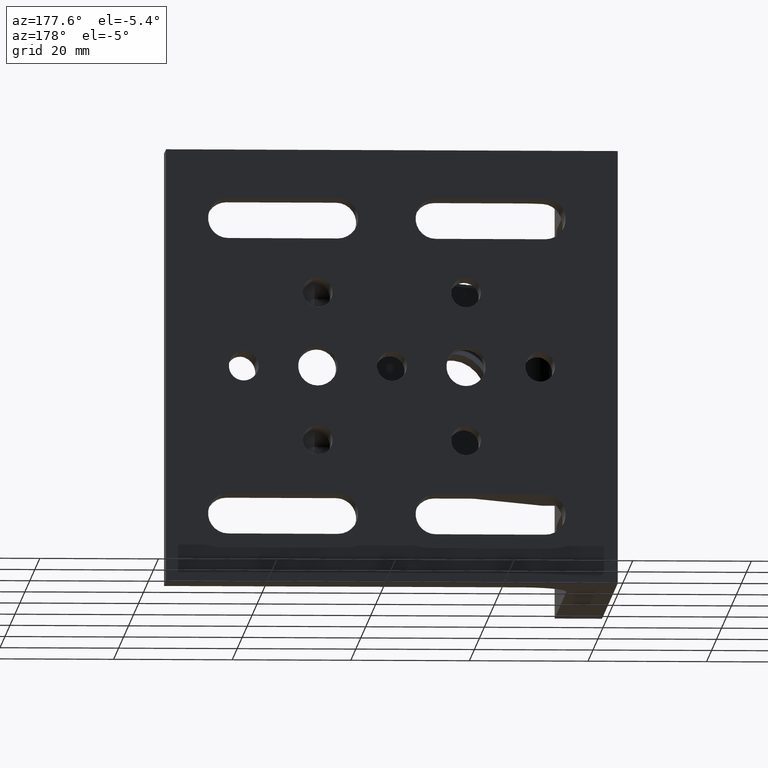
[diagram: clean part render]
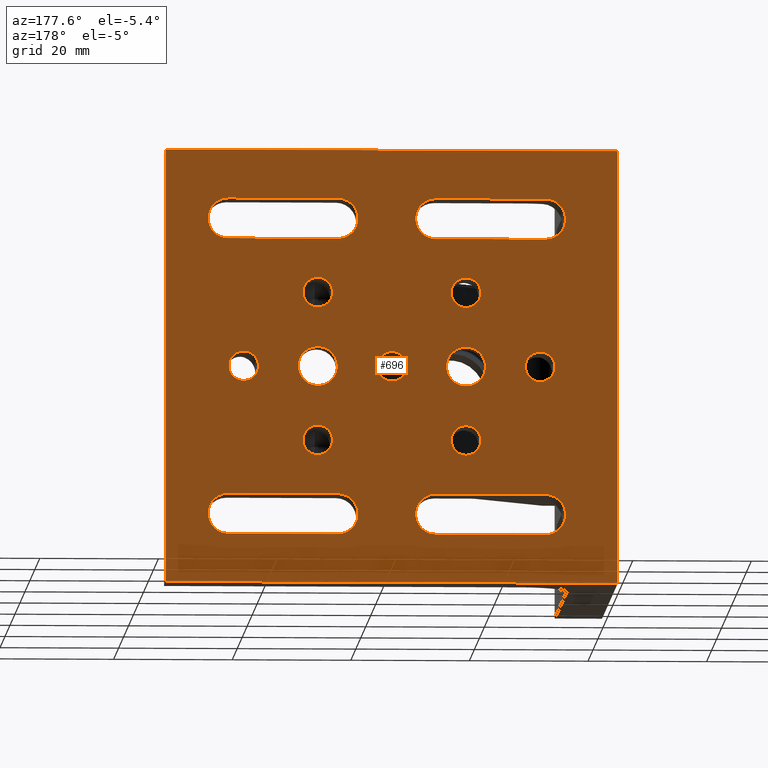
[diagram: same view with one face highlighted and labeled with its STEP entity id]
A machine part, auxiliary view. The second image highlights one B-rep face of the part: STEP entity #696.
In plain terms, the highlighted planar face has unit normal (0, -1, 0).
Its self-contained STEP definition (entity closure, byte-faithful):
#12 = EDGE_CURVE ( 'NONE', #3153, #2366, #1981, .T. ) ;
#16 = EDGE_CURVE ( 'NONE', #2092, #1285, #119, .T. ) ;
#25 = CIRCLE ( 'NONE', #611, 3.400000000000000355 ) ;
#43 = CIRCLE ( 'NONE', #3133, 3.400000000000000355 ) ;
#52 = ORIENTED_EDGE ( 'NONE', *, *, #2169, .F. ) ;
#60 = EDGE_CURVE ( 'NONE', #1803, #656, #1048, .T. ) ;
#61 = VECTOR ( 'NONE', #989, 1000.000000000000000 ) ;
#72 = DIRECTION ( 'NONE',  ( -1.000000000000000000, -0.000000000000000000, -0.000000000000000000 ) ) ;
#82 = EDGE_LOOP ( 'NONE', ( #2694, #636 ) ) ;
#84 = CARTESIAN_POINT ( 'NONE',  ( 47.20000000000000284, 0.000000000000000000, -25.00000000000000000 ) ) ;
#87 = VERTEX_POINT ( 'NONE', #633 ) ;
#96 = VECTOR ( 'NONE', #471, 1000.000000000000000 ) ;
#98 = EDGE_CURVE ( 'NONE', #2092, #1851, #1679, .T. ) ;
#101 = DIRECTION ( 'NONE',  ( 0.000000000000000000, 0.000000000000000000, 1.000000000000000000 ) ) ;
#113 = DIRECTION ( 'NONE',  ( -0.000000000000000000, 1.000000000000000000, -0.000000000000000000 ) ) ;
#115 = FACE_BOUND ( 'NONE', #2812, .T. ) ;
#117 = CARTESIAN_POINT ( 'NONE',  ( 30.70000000000000639, 0.000000000000000000, 25.00000000000000000 ) ) ;
#119 = LINE ( 'NONE', #2306, #1880 ) ;
#146 = DIRECTION ( 'NONE',  ( -0.000000000000000000, 1.000000000000000000, -0.000000000000000000 ) ) ;
#160 = DIRECTION ( 'NONE',  ( 0.000000000000000000, 0.000000000000000000, 1.000000000000000000 ) ) ;
#172 = AXIS2_PLACEMENT_3D ( 'NONE', #268, #1222, #2441 ) ;
#182 = DIRECTION ( 'NONE',  ( -0.000000000000000000, 1.000000000000000000, -0.000000000000000000 ) ) ;
#185 = CARTESIAN_POINT ( 'NONE',  ( 12.20000000000000284, 0.000000000000000000, 25.00000000000000000 ) ) ;
#192 = FACE_BOUND ( 'NONE', #644, .T. ) ;
#197 = EDGE_LOOP ( 'NONE', ( #232, #846 ) ) ;
#204 = DIRECTION ( 'NONE',  ( -0.000000000000000000, -1.000000000000000000, -0.000000000000000000 ) ) ;
#208 = ORIENTED_EDGE ( 'NONE', *, *, #1775, .T. ) ;
#213 = EDGE_CURVE ( 'NONE', #2076, #3153, #1005, .T. ) ;
#224 = AXIS2_PLACEMENT_3D ( 'NONE', #499, #1483, #2487 ) ;
#232 = ORIENTED_EDGE ( 'NONE', *, *, #1071, .F. ) ;
#235 = CARTESIAN_POINT ( 'NONE',  ( 47.20000000000000284, 0.000000000000000000, -28.40000000000000213 ) ) ;
#239 = CARTESIAN_POINT ( 'NONE',  ( 30.70000000000000639, 0.000000000000000000, -21.60000000000000142 ) ) ;
#268 = CARTESIAN_POINT ( 'NONE',  ( 65.70000000000000284, 0.000000000000000000, -25.00000000000000000 ) ) ;
#271 = CIRCLE ( 'NONE', #2077, 2.499999999999988454 ) ;
#278 = ORIENTED_EDGE ( 'NONE', *, *, #1368, .F. ) ;
#285 = ORIENTED_EDGE ( 'NONE', *, *, #355, .F. ) ;
#323 = CIRCLE ( 'NONE', #1668, 2.499999999999990230 ) ;
#332 = CARTESIAN_POINT ( 'NONE',  ( 63.10000000000000142, 1.249139735130297407E-15, -2.499999999999988454 ) ) ;
#340 = CARTESIAN_POINT ( 'NONE',  ( 12.20000000000000284, 0.000000000000000000, -25.00000000000000000 ) ) ;
#343 = AXIS2_PLACEMENT_3D ( 'NONE', #1193, #694, #1499 ) ;
#344 = ORIENTED_EDGE ( 'NONE', *, *, #60, .F. ) ;
#355 = EDGE_CURVE ( 'NONE', #2602, #87, #991, .T. ) ;
#363 = AXIS2_PLACEMENT_3D ( 'NONE', #1931, #2465, #2195 ) ;
#364 = ORIENTED_EDGE ( 'NONE', *, *, #1655, .F. ) ;
#367 = ORIENTED_EDGE ( 'NONE', *, *, #1841, .T. ) ;
#369 = EDGE_CURVE ( 'NONE', #619, #1661, #1769, .T. ) ;
#373 = DIRECTION ( 'NONE',  ( -0.000000000000000000, -1.000000000000000000, -0.000000000000000000 ) ) ;
#374 = EDGE_CURVE ( 'NONE', #1903, #3031, #3037, .T. ) ;
#385 = CARTESIAN_POINT ( 'NONE',  ( 12.20000000000000284, 0.000000000000000000, 21.60000000000000142 ) ) ;
#391 = ORIENTED_EDGE ( 'NONE', *, *, #369, .T. ) ;
#393 = DIRECTION ( 'NONE',  ( 0.000000000000000000, 0.000000000000000000, 1.000000000000000000 ) ) ;
#430 = VERTEX_POINT ( 'NONE', #235 ) ;
#439 = CARTESIAN_POINT ( 'NONE',  ( 0.000000000000000000, 0.000000000000000000, 36.57600000000000051 ) ) ;
#441 = EDGE_CURVE ( 'NONE', #2787, #2076, #3221, .T. ) ;
#445 = CARTESIAN_POINT ( 'NONE',  ( 50.60000000000000853, 0.000000000000000000, -3.299999999999977618 ) ) ;
#450 = VERTEX_POINT ( 'NONE', #332 ) ;
#471 = DIRECTION ( 'NONE',  ( 1.000000000000000000, 0.000000000000000000, 0.000000000000000000 ) ) ;
#477 = FACE_BOUND ( 'NONE', #941, .T. ) ;
#499 = CARTESIAN_POINT ( 'NONE',  ( 47.20000000000000284, 0.000000000000000000, 25.00000000000000000 ) ) ;
#502 = ORIENTED_EDGE ( 'NONE', *, *, #2556, .F. ) ;
#503 = EDGE_CURVE ( 'NONE', #1851, #1503, #1042, .T. ) ;
#506 = LINE ( 'NONE', #2524, #2123 ) ;
#514 = CARTESIAN_POINT ( 'NONE',  ( 50.60000000000000853, 0.000000000000000000, 6.196712803685608594E-15 ) ) ;
#525 = CARTESIAN_POINT ( 'NONE',  ( 13.10000000000000142, 1.249139735130297407E-15, 0.000000000000000000 ) ) ;
#561 = CARTESIAN_POINT ( 'NONE',  ( 25.59999999999999787, 0.000000000000000000, -3.299999999999977618 ) ) ;
#571 = CIRCLE ( 'NONE', #1405, 2.499999999999988454 ) ;
#577 = CARTESIAN_POINT ( 'NONE',  ( 65.70000000000000284, 0.000000000000000000, 21.60000000000000142 ) ) ;
#582 = CARTESIAN_POINT ( 'NONE',  ( 25.60000000000000497, 1.249139735130297407E-15, 14.99999999999999112 ) ) ;
#584 = AXIS2_PLACEMENT_3D ( 'NONE', #877, #2400, #2698 ) ;
#597 = EDGE_LOOP ( 'NONE', ( #751, #344 ) ) ;
#598 = CARTESIAN_POINT ( 'NONE',  ( 47.20000000000000284, 0.000000000000000000, 28.40000000000000213 ) ) ;
#611 = AXIS2_PLACEMENT_3D ( 'NONE', #340, #638, #1812 ) ;
#613 = CARTESIAN_POINT ( 'NONE',  ( 30.70000000000000639, 0.000000000000000000, -25.00000000000000000 ) ) ;
#615 = EDGE_LOOP ( 'NONE', ( #278, #1918 ) ) ;
#619 = VERTEX_POINT ( 'NONE', #445 ) ;
#624 = VERTEX_POINT ( 'NONE', #2953 ) ;
#633 = CARTESIAN_POINT ( 'NONE',  ( 65.70000000000000284, 0.000000000000000000, -28.40000000000000213 ) ) ;
#636 = ORIENTED_EDGE ( 'NONE', *, *, #2818, .F. ) ;
#638 = DIRECTION ( 'NONE',  ( 0.000000000000000000, 1.000000000000000000, 0.000000000000000000 ) ) ;
#644 = EDGE_LOOP ( 'NONE', ( #1465, #2292, #2370, #1296 ) ) ;
#651 = DIRECTION ( 'NONE',  ( -0.000000000000000000, -0.000000000000000000, -1.000000000000000000 ) ) ;
#656 = VERTEX_POINT ( 'NONE', #1184 ) ;
#667 = CIRCLE ( 'NONE', #3119, 2.499999999999988454 ) ;
#675 = DIRECTION ( 'NONE',  ( 0.000000000000000000, 0.000000000000000000, 1.000000000000000000 ) ) ;
#676 = CARTESIAN_POINT ( 'NONE',  ( 76.20000000000000284, 0.000000000000000000, -36.57600000000000051 ) ) ;
#688 = CIRCLE ( 'NONE', #584, 3.299999999999983391 ) ;
#694 = DIRECTION ( 'NONE',  ( -0.000000000000000000, 1.000000000000000000, -0.000000000000000000 ) ) ;
#696 = ADVANCED_FACE ( 'NONE', ( #1701, #3178, #2179, #2094, #1432, #2431, #115, #1614, #2716, #1110, #192, #477, #1447, #1463 ), #3194, .F. ) ;
#703 = ORIENTED_EDGE ( 'NONE', *, *, #2859, .T. ) ;
#751 = ORIENTED_EDGE ( 'NONE', *, *, #2817, .F. ) ;
#767 = CARTESIAN_POINT ( 'NONE',  ( 47.20000000000000284, 0.000000000000000000, 28.40000000000000213 ) ) ;
#788 = CARTESIAN_POINT ( 'NONE',  ( 47.20000000000000284, 0.000000000000000000, -21.60000000000000142 ) ) ;
#792 = EDGE_CURVE ( 'NONE', #3182, #1231, #506, .T. ) ;
#824 = CARTESIAN_POINT ( 'NONE',  ( 12.20000000000000284, 0.000000000000000000, 28.40000000000000213 ) ) ;
#827 = AXIS2_PLACEMENT_3D ( 'NONE', #1579, #2337, #1840 ) ;
#832 = CARTESIAN_POINT ( 'NONE',  ( 0.000000000000000000, 0.000000000000000000, -36.57600000000000051 ) ) ;
#838 = CARTESIAN_POINT ( 'NONE',  ( 50.60000000000000853, 1.249139735130297407E-15, 12.50000000000000000 ) ) ;
#846 = ORIENTED_EDGE ( 'NONE', *, *, #2757, .F. ) ;
#853 = CARTESIAN_POINT ( 'NONE',  ( 25.60000000000000497, 1.249139735130297407E-15, 10.00000000000001421 ) ) ;
#860 = EDGE_LOOP ( 'NONE', ( #391, #208 ) ) ;
#863 = DIRECTION ( 'NONE',  ( -1.000000000000000000, -0.000000000000000000, -0.000000000000000000 ) ) ;
#877 = CARTESIAN_POINT ( 'NONE',  ( 25.59999999999999787, 0.000000000000000000, 6.196712803685608594E-15 ) ) ;
#879 = CIRCLE ( 'NONE', #2448, 3.400000000000000355 ) ;
#917 = VECTOR ( 'NONE', #863, 1000.000000000000000 ) ;
#928 = CARTESIAN_POINT ( 'NONE',  ( 25.59999999999999787, 0.000000000000000000, 6.196712803685608594E-15 ) ) ;
#936 = VECTOR ( 'NONE', #3126, 1000.000000000000000 ) ;
#941 = EDGE_LOOP ( 'NONE', ( #2389, #1595, #1040, #1383 ) ) ;
#950 = EDGE_CURVE ( 'NONE', #2086, #2602, #1366, .T. ) ;
#982 = CARTESIAN_POINT ( 'NONE',  ( 25.60000000000000497, 1.249139735130297407E-15, -14.99999999999999112 ) ) ;
#988 = CARTESIAN_POINT ( 'NONE',  ( 65.70000000000000284, 0.000000000000000000, -21.60000000000000142 ) ) ;
#989 = DIRECTION ( 'NONE',  ( 1.000000000000000000, 0.000000000000000000, 0.000000000000000000 ) ) ;
#991 = CIRCLE ( 'NONE', #172, 3.400000000000000355 ) ;
#992 = CARTESIAN_POINT ( 'NONE',  ( 63.10000000000000142, 1.249139735130297407E-15, 0.000000000000000000 ) ) ;
#1003 = VERTEX_POINT ( 'NONE', #824 ) ;
#1005 = LINE ( 'NONE', #767, #61 ) ;
#1012 = EDGE_CURVE ( 'NONE', #2344, #3182, #25, .T. ) ;
#1038 = CARTESIAN_POINT ( 'NONE',  ( 50.60000000000000853, 1.249139735130297407E-15, -12.50000000000000000 ) ) ;
#1040 = ORIENTED_EDGE ( 'NONE', *, *, #1054, .F. ) ;
#1042 = LINE ( 'NONE', #832, #2861 ) ;
#1043 = CARTESIAN_POINT ( 'NONE',  ( 25.60000000000000497, 1.249139735130297407E-15, 12.50000000000000178 ) ) ;
#1048 = CIRCLE ( 'NONE', #1205, 2.499999999999988454 ) ;
#1054 = EDGE_CURVE ( 'NONE', #2366, #2787, #2633, .T. ) ;
#1071 = EDGE_CURVE ( 'NONE', #2476, #1786, #2594, .T. ) ;
#1074 = CIRCLE ( 'NONE', #2537, 2.499999999999988454 ) ;
#1076 = DIRECTION ( 'NONE',  ( -1.000000000000000000, -0.000000000000000000, -0.000000000000000000 ) ) ;
#1110 = FACE_BOUND ( 'NONE', #2850, .T. ) ;
#1115 = CARTESIAN_POINT ( 'NONE',  ( 63.10000000000000142, 1.249139735130297407E-15, 2.499999999999988454 ) ) ;
#1129 = CARTESIAN_POINT ( 'NONE',  ( 38.09999999999998721, 1.249139735130297407E-15, -2.499999999999988454 ) ) ;
#1139 = CIRCLE ( 'NONE', #2970, 2.499999999999988454 ) ;
#1166 = DIRECTION ( 'NONE',  ( -1.000000000000000000, -0.000000000000000000, -0.000000000000000000 ) ) ;
#1177 = CARTESIAN_POINT ( 'NONE',  ( 30.70000000000000639, 0.000000000000000000, -28.40000000000000213 ) ) ;
#1182 = DIRECTION ( 'NONE',  ( -0.000000000000000000, 1.000000000000000000, -0.000000000000000000 ) ) ;
#1184 = CARTESIAN_POINT ( 'NONE',  ( 38.09999999999998721, 1.249139735130297407E-15, 2.499999999999988454 ) ) ;
#1193 = CARTESIAN_POINT ( 'NONE',  ( 13.10000000000000142, 1.249139735130297407E-15, 0.000000000000000000 ) ) ;
#1197 = VERTEX_POINT ( 'NONE', #982 ) ;
#1205 = AXIS2_PLACEMENT_3D ( 'NONE', #2869, #2643, #393 ) ;
#1207 = EDGE_CURVE ( 'NONE', #87, #430, #1276, .T. ) ;
#1222 = DIRECTION ( 'NONE',  ( 0.000000000000000000, 1.000000000000000000, 0.000000000000000000 ) ) ;
#1231 = VERTEX_POINT ( 'NONE', #239 ) ;
#1276 = LINE ( 'NONE', #3240, #2662 ) ;
#1285 = VERTEX_POINT ( 'NONE', #1315 ) ;
#1296 = ORIENTED_EDGE ( 'NONE', *, *, #1526, .F. ) ;
#1313 = VECTOR ( 'NONE', #2118, 1000.000000000000000 ) ;
#1315 = CARTESIAN_POINT ( 'NONE',  ( 0.000000000000000000, 0.000000000000000000, 36.57600000000000051 ) ) ;
#1318 = CARTESIAN_POINT ( 'NONE',  ( 47.20000000000000284, 0.000000000000000000, -21.60000000000000142 ) ) ;
#1330 = CARTESIAN_POINT ( 'NONE',  ( 25.59999999999999787, 0.000000000000000000, 3.299999999999989608 ) ) ;
#1340 = DIRECTION ( 'NONE',  ( 0.000000000000000000, 0.000000000000000000, 1.000000000000000000 ) ) ;
#1354 = VERTEX_POINT ( 'NONE', #853 ) ;
#1357 = CARTESIAN_POINT ( 'NONE',  ( 12.20000000000000284, 0.000000000000000000, -28.40000000000000213 ) ) ;
#1366 = LINE ( 'NONE', #1318, #1850 ) ;
#1368 = EDGE_CURVE ( 'NONE', #624, #2903, #1139, .T. ) ;
#1369 = VERTEX_POINT ( 'NONE', #582 ) ;
#1374 = CARTESIAN_POINT ( 'NONE',  ( 13.10000000000000142, 1.249139735130297407E-15, 2.499999999999990230 ) ) ;
#1376 = CARTESIAN_POINT ( 'NONE',  ( 76.20000000000000284, 0.000000000000000000, 36.57600000000000051 ) ) ;
#1377 = DIRECTION ( 'NONE',  ( -0.000000000000000000, 1.000000000000000000, -0.000000000000000000 ) ) ;
#1383 = ORIENTED_EDGE ( 'NONE', *, *, #12, .F. ) ;
#1390 = CIRCLE ( 'NONE', #2056, 2.499999999999988454 ) ;
#1405 = AXIS2_PLACEMENT_3D ( 'NONE', #2794, #1565, #1340 ) ;
#1406 = VERTEX_POINT ( 'NONE', #1330 ) ;
#1424 = CARTESIAN_POINT ( 'NONE',  ( 25.60000000000000497, 1.249139735130297407E-15, -10.00000000000001421 ) ) ;
#1428 = CARTESIAN_POINT ( 'NONE',  ( 0.000000000000000000, 0.000000000000000000, -36.57600000000000051 ) ) ;
#1432 = FACE_BOUND ( 'NONE', #615, .T. ) ;
#1447 = FACE_BOUND ( 'NONE', #3089, .T. ) ;
#1448 = DIRECTION ( 'NONE',  ( -0.000000000000000000, 1.000000000000000000, -0.000000000000000000 ) ) ;
#1462 = AXIS2_PLACEMENT_3D ( 'NONE', #2109, #1448, #1869 ) ;
#1463 = FACE_OUTER_BOUND ( 'NONE', #1751, .T. ) ;
#1465 = ORIENTED_EDGE ( 'NONE', *, *, #2205, .F. ) ;
#1483 = DIRECTION ( 'NONE',  ( 0.000000000000000000, 1.000000000000000000, -0.000000000000000000 ) ) ;
#1493 = CARTESIAN_POINT ( 'NONE',  ( 25.60000000000000497, 1.249139735130297407E-15, 12.50000000000000178 ) ) ;
#1494 = EDGE_LOOP ( 'NONE', ( #2585, #1963 ) ) ;
#1499 = DIRECTION ( 'NONE',  ( 0.000000000000000000, 0.000000000000000000, 1.000000000000000000 ) ) ;
#1503 = VERTEX_POINT ( 'NONE', #1428 ) ;
#1505 = DIRECTION ( 'NONE',  ( -1.000000000000000000, -0.000000000000000000, -0.000000000000000000 ) ) ;
#1508 = DIRECTION ( 'NONE',  ( -0.000000000000000000, 1.000000000000000000, -0.000000000000000000 ) ) ;
#1513 = DIRECTION ( 'NONE',  ( 0.000000000000000000, 0.000000000000000000, 1.000000000000000000 ) ) ;
#1526 = EDGE_CURVE ( 'NONE', #1003, #3040, #1941, .T. ) ;
#1528 = DIRECTION ( 'NONE',  ( 0.000000000000000000, 0.000000000000000000, 1.000000000000000000 ) ) ;
#1540 = AXIS2_PLACEMENT_3D ( 'NONE', #928, #373, #3150 ) ;
#1554 = DIRECTION ( 'NONE',  ( 0.000000000000000000, 0.000000000000000000, 1.000000000000000000 ) ) ;
#1565 = DIRECTION ( 'NONE',  ( -0.000000000000000000, 1.000000000000000000, -0.000000000000000000 ) ) ;
#1579 = CARTESIAN_POINT ( 'NONE',  ( 50.60000000000000853, 0.000000000000000000, 6.196712803685608594E-15 ) ) ;
#1595 = ORIENTED_EDGE ( 'NONE', *, *, #441, .F. ) ;
#1597 = DIRECTION ( 'NONE',  ( 0.000000000000000000, 0.000000000000000000, 1.000000000000000000 ) ) ;
#1600 = ORIENTED_EDGE ( 'NONE', *, *, #1012, .F. ) ;
#1612 = CIRCLE ( 'NONE', #2461, 2.499999999999988454 ) ;
#1614 = FACE_BOUND ( 'NONE', #860, .T. ) ;
#1655 = EDGE_CURVE ( 'NONE', #1231, #2223, #879, .T. ) ;
#1658 = CARTESIAN_POINT ( 'NONE',  ( 12.20000000000000284, 0.000000000000000000, -21.60000000000000142 ) ) ;
#1661 = VERTEX_POINT ( 'NONE', #2551 ) ;
#1668 = AXIS2_PLACEMENT_3D ( 'NONE', #525, #2976, #1513 ) ;
#1677 = CARTESIAN_POINT ( 'NONE',  ( 50.60000000000000853, 1.249139735130297407E-15, -10.00000000000001243 ) ) ;
#1679 = LINE ( 'NONE', #1376, #1313 ) ;
#1701 = FACE_BOUND ( 'NONE', #597, .T. ) ;
#1705 = ORIENTED_EDGE ( 'NONE', *, *, #792, .F. ) ;
#1710 = EDGE_CURVE ( 'NONE', #2512, #1197, #571, .T. ) ;
#1711 = VERTEX_POINT ( 'NONE', #561 ) ;
#1724 = DIRECTION ( 'NONE',  ( -0.000000000000000000, 1.000000000000000000, -0.000000000000000000 ) ) ;
#1744 = AXIS2_PLACEMENT_3D ( 'NONE', #3209, #1182, #160 ) ;
#1751 = EDGE_LOOP ( 'NONE', ( #2762, #52, #3071, #1881 ) ) ;
#1769 = CIRCLE ( 'NONE', #1825, 3.299999999999983391 ) ;
#1775 = EDGE_CURVE ( 'NONE', #1661, #619, #2664, .T. ) ;
#1786 = VERTEX_POINT ( 'NONE', #3132 ) ;
#1798 = AXIS2_PLACEMENT_3D ( 'NONE', #84, #1839, #1597 ) ;
#1803 = VERTEX_POINT ( 'NONE', #1129 ) ;
#1809 = DIRECTION ( 'NONE',  ( 0.000000000000000000, 1.000000000000000000, -0.000000000000000000 ) ) ;
#1812 = DIRECTION ( 'NONE',  ( 0.000000000000000000, 0.000000000000000000, 1.000000000000000000 ) ) ;
#1814 = EDGE_CURVE ( 'NONE', #3040, #1870, #43, .T. ) ;
#1824 = CARTESIAN_POINT ( 'NONE',  ( 65.70000000000000284, 0.000000000000000000, 25.00000000000000000 ) ) ;
#1825 = AXIS2_PLACEMENT_3D ( 'NONE', #514, #204, #2723 ) ;
#1839 = DIRECTION ( 'NONE',  ( 0.000000000000000000, 1.000000000000000000, 0.000000000000000000 ) ) ;
#1840 = DIRECTION ( 'NONE',  ( 0.000000000000000000, 0.000000000000000000, -1.000000000000000000 ) ) ;
#1841 = EDGE_CURVE ( 'NONE', #1711, #1406, #2385, .T. ) ;
#1844 = DIRECTION ( 'NONE',  ( -0.000000000000000000, 1.000000000000000000, -0.000000000000000000 ) ) ;
#1850 = VECTOR ( 'NONE', #2042, 1000.000000000000000 ) ;
#1851 = VERTEX_POINT ( 'NONE', #676 ) ;
#1854 = ORIENTED_EDGE ( 'NONE', *, *, #950, .F. ) ;
#1869 = DIRECTION ( 'NONE',  ( 0.000000000000000000, 0.000000000000000000, 1.000000000000000000 ) ) ;
#1870 = VERTEX_POINT ( 'NONE', #1906 ) ;
#1880 = VECTOR ( 'NONE', #72, 1000.000000000000000 ) ;
#1881 = ORIENTED_EDGE ( 'NONE', *, *, #98, .T. ) ;
#1903 = VERTEX_POINT ( 'NONE', #1374 ) ;
#1906 = CARTESIAN_POINT ( 'NONE',  ( 30.70000000000000639, 0.000000000000000000, 21.60000000000000142 ) ) ;
#1907 = CIRCLE ( 'NONE', #1798, 3.400000000000000355 ) ;
#1918 = ORIENTED_EDGE ( 'NONE', *, *, #2172, .F. ) ;
#1927 = CIRCLE ( 'NONE', #3085, 2.499999999999988454 ) ;
#1931 = CARTESIAN_POINT ( 'NONE',  ( 0.000000000000000000, 0.000000000000000000, 36.57600000000000051 ) ) ;
#1932 = LINE ( 'NONE', #2876, #936 ) ;
#1941 = LINE ( 'NONE', #2740, #96 ) ;
#1954 = VECTOR ( 'NONE', #651, 1000.000000000000000 ) ;
#1963 = ORIENTED_EDGE ( 'NONE', *, *, #3058, .F. ) ;
#1981 = CIRCLE ( 'NONE', #2882, 3.400000000000000355 ) ;
#1994 = EDGE_LOOP ( 'NONE', ( #367, #703 ) ) ;
#2042 = DIRECTION ( 'NONE',  ( 1.000000000000000000, 0.000000000000000000, 0.000000000000000000 ) ) ;
#2056 = AXIS2_PLACEMENT_3D ( 'NONE', #1043, #2285, #3236 ) ;
#2076 = VERTEX_POINT ( 'NONE', #598 ) ;
#2077 = AXIS2_PLACEMENT_3D ( 'NONE', #1038, #113, #2299 ) ;
#2086 = VERTEX_POINT ( 'NONE', #788 ) ;
#2092 = VERTEX_POINT ( 'NONE', #3097 ) ;
#2094 = FACE_BOUND ( 'NONE', #197, .T. ) ;
#2109 = CARTESIAN_POINT ( 'NONE',  ( 25.60000000000000497, 1.249139735130297407E-15, -12.50000000000000178 ) ) ;
#2110 = ORIENTED_EDGE ( 'NONE', *, *, #2612, .F. ) ;
#2118 = DIRECTION ( 'NONE',  ( -0.000000000000000000, -0.000000000000000000, -1.000000000000000000 ) ) ;
#2123 = VECTOR ( 'NONE', #2509, 1000.000000000000000 ) ;
#2140 = LINE ( 'NONE', #439, #1954 ) ;
#2161 = ORIENTED_EDGE ( 'NONE', *, *, #2426, .F. ) ;
#2169 = EDGE_CURVE ( 'NONE', #1285, #1503, #2140, .T. ) ;
#2172 = EDGE_CURVE ( 'NONE', #2903, #624, #1074, .T. ) ;
#2179 = FACE_BOUND ( 'NONE', #82, .T. ) ;
#2195 = DIRECTION ( 'NONE',  ( 0.000000000000000000, -0.000000000000000000, -1.000000000000000000 ) ) ;
#2205 = EDGE_CURVE ( 'NONE', #2642, #1003, #2271, .T. ) ;
#2207 = DIRECTION ( 'NONE',  ( 0.000000000000000000, 0.000000000000000000, 1.000000000000000000 ) ) ;
#2223 = VERTEX_POINT ( 'NONE', #1177 ) ;
#2250 = VERTEX_POINT ( 'NONE', #1115 ) ;
#2265 = EDGE_CURVE ( 'NONE', #1369, #1354, #1390, .T. ) ;
#2266 = VECTOR ( 'NONE', #1166, 1000.000000000000000 ) ;
#2271 = CIRCLE ( 'NONE', #2382, 3.400000000000000355 ) ;
#2277 = EDGE_CURVE ( 'NONE', #2250, #450, #667, .T. ) ;
#2285 = DIRECTION ( 'NONE',  ( -0.000000000000000000, 1.000000000000000000, -0.000000000000000000 ) ) ;
#2292 = ORIENTED_EDGE ( 'NONE', *, *, #2917, .F. ) ;
#2299 = DIRECTION ( 'NONE',  ( 0.000000000000000000, 0.000000000000000000, 1.000000000000000000 ) ) ;
#2306 = CARTESIAN_POINT ( 'NONE',  ( 0.000000000000000000, 0.000000000000000000, 36.57600000000000051 ) ) ;
#2337 = DIRECTION ( 'NONE',  ( -0.000000000000000000, -1.000000000000000000, -0.000000000000000000 ) ) ;
#2344 = VERTEX_POINT ( 'NONE', #3061 ) ;
#2356 = DIRECTION ( 'NONE',  ( 0.000000000000000000, 0.000000000000000000, -1.000000000000000000 ) ) ;
#2366 = VERTEX_POINT ( 'NONE', #577 ) ;
#2369 = DIRECTION ( 'NONE',  ( 0.000000000000000000, 0.000000000000000000, -1.000000000000000000 ) ) ;
#2370 = ORIENTED_EDGE ( 'NONE', *, *, #1814, .F. ) ;
#2382 = AXIS2_PLACEMENT_3D ( 'NONE', #185, #2408, #2871 ) ;
#2385 = CIRCLE ( 'NONE', #1540, 3.299999999999983391 ) ;
#2389 = ORIENTED_EDGE ( 'NONE', *, *, #213, .F. ) ;
#2400 = DIRECTION ( 'NONE',  ( -0.000000000000000000, -1.000000000000000000, -0.000000000000000000 ) ) ;
#2401 = ORIENTED_EDGE ( 'NONE', *, *, #2417, .F. ) ;
#2408 = DIRECTION ( 'NONE',  ( 0.000000000000000000, 1.000000000000000000, -0.000000000000000000 ) ) ;
#2417 = EDGE_CURVE ( 'NONE', #430, #2086, #1907, .T. ) ;
#2426 = EDGE_CURVE ( 'NONE', #2223, #2344, #2834, .T. ) ;
#2427 = CARTESIAN_POINT ( 'NONE',  ( 47.20000000000000284, 0.000000000000000000, 21.60000000000000142 ) ) ;
#2431 = FACE_BOUND ( 'NONE', #1494, .T. ) ;
#2432 = CARTESIAN_POINT ( 'NONE',  ( 50.60000000000000853, 1.249139735130297407E-15, 10.00000000000001243 ) ) ;
#2441 = DIRECTION ( 'NONE',  ( 0.000000000000000000, 0.000000000000000000, 1.000000000000000000 ) ) ;
#2444 = EDGE_LOOP ( 'NONE', ( #2606, #2110 ) ) ;
#2448 = AXIS2_PLACEMENT_3D ( 'NONE', #613, #3029, #101 ) ;
#2461 = AXIS2_PLACEMENT_3D ( 'NONE', #1493, #1508, #2207 ) ;
#2465 = DIRECTION ( 'NONE',  ( 0.000000000000000000, -1.000000000000000000, 0.000000000000000000 ) ) ;
#2476 = VERTEX_POINT ( 'NONE', #1677 ) ;
#2487 = DIRECTION ( 'NONE',  ( 0.000000000000000000, 0.000000000000000000, -1.000000000000000000 ) ) ;
#2509 = DIRECTION ( 'NONE',  ( 1.000000000000000000, 0.000000000000000000, 0.000000000000000000 ) ) ;
#2512 = VERTEX_POINT ( 'NONE', #1424 ) ;
#2524 = CARTESIAN_POINT ( 'NONE',  ( 12.20000000000000284, 0.000000000000000000, -21.60000000000000142 ) ) ;
#2537 = AXIS2_PLACEMENT_3D ( 'NONE', #3155, #1377, #2659 ) ;
#2551 = CARTESIAN_POINT ( 'NONE',  ( 50.60000000000000853, 0.000000000000000000, 3.299999999999989608 ) ) ;
#2556 = EDGE_CURVE ( 'NONE', #450, #2250, #1927, .T. ) ;
#2585 = ORIENTED_EDGE ( 'NONE', *, *, #2265, .F. ) ;
#2594 = CIRCLE ( 'NONE', #1744, 2.499999999999988454 ) ;
#2602 = VERTEX_POINT ( 'NONE', #988 ) ;
#2606 = ORIENTED_EDGE ( 'NONE', *, *, #374, .F. ) ;
#2612 = EDGE_CURVE ( 'NONE', #3031, #1903, #323, .T. ) ;
#2633 = LINE ( 'NONE', #2427, #2266 ) ;
#2637 = CARTESIAN_POINT ( 'NONE',  ( 47.20000000000000284, 0.000000000000000000, 21.60000000000000142 ) ) ;
#2642 = VERTEX_POINT ( 'NONE', #385 ) ;
#2643 = DIRECTION ( 'NONE',  ( -0.000000000000000000, 1.000000000000000000, -0.000000000000000000 ) ) ;
#2659 = DIRECTION ( 'NONE',  ( 0.000000000000000000, 0.000000000000000000, 1.000000000000000000 ) ) ;
#2662 = VECTOR ( 'NONE', #1505, 1000.000000000000000 ) ;
#2664 = CIRCLE ( 'NONE', #827, 3.299999999999983391 ) ;
#2694 = ORIENTED_EDGE ( 'NONE', *, *, #1710, .F. ) ;
#2698 = DIRECTION ( 'NONE',  ( 0.000000000000000000, 0.000000000000000000, -1.000000000000000000 ) ) ;
#2716 = FACE_BOUND ( 'NONE', #1994, .T. ) ;
#2723 = DIRECTION ( 'NONE',  ( 0.000000000000000000, 0.000000000000000000, -1.000000000000000000 ) ) ;
#2726 = CIRCLE ( 'NONE', #1462, 2.499999999999988454 ) ;
#2740 = CARTESIAN_POINT ( 'NONE',  ( 12.20000000000000284, 0.000000000000000000, 28.40000000000000213 ) ) ;
#2757 = EDGE_CURVE ( 'NONE', #1786, #2476, #271, .T. ) ;
#2762 = ORIENTED_EDGE ( 'NONE', *, *, #503, .T. ) ;
#2772 = CIRCLE ( 'NONE', #3145, 2.499999999999988454 ) ;
#2787 = VERTEX_POINT ( 'NONE', #2637 ) ;
#2794 = CARTESIAN_POINT ( 'NONE',  ( 25.60000000000000497, 1.249139735130297407E-15, -12.50000000000000178 ) ) ;
#2812 = EDGE_LOOP ( 'NONE', ( #3207, #502 ) ) ;
#2817 = EDGE_CURVE ( 'NONE', #656, #1803, #2772, .T. ) ;
#2818 = EDGE_CURVE ( 'NONE', #1197, #2512, #2726, .T. ) ;
#2834 = LINE ( 'NONE', #1357, #917 ) ;
#2850 = EDGE_LOOP ( 'NONE', ( #1854, #2401, #3164, #285 ) ) ;
#2859 = EDGE_CURVE ( 'NONE', #1406, #1711, #688, .T. ) ;
#2861 = VECTOR ( 'NONE', #1076, 1000.000000000000000 ) ;
#2869 = CARTESIAN_POINT ( 'NONE',  ( 38.09999999999998721, 1.249139735130297407E-15, 0.000000000000000000 ) ) ;
#2871 = DIRECTION ( 'NONE',  ( 0.000000000000000000, 0.000000000000000000, -1.000000000000000000 ) ) ;
#2876 = CARTESIAN_POINT ( 'NONE',  ( 12.20000000000000284, 0.000000000000000000, 21.60000000000000142 ) ) ;
#2882 = AXIS2_PLACEMENT_3D ( 'NONE', #1824, #1809, #2356 ) ;
#2896 = DIRECTION ( 'NONE',  ( 0.000000000000000000, 1.000000000000000000, -0.000000000000000000 ) ) ;
#2903 = VERTEX_POINT ( 'NONE', #2432 ) ;
#2917 = EDGE_CURVE ( 'NONE', #1870, #2642, #1932, .T. ) ;
#2924 = CARTESIAN_POINT ( 'NONE',  ( 38.09999999999998721, 1.249139735130297407E-15, 0.000000000000000000 ) ) ;
#2953 = CARTESIAN_POINT ( 'NONE',  ( 50.60000000000000853, 1.249139735130297407E-15, 14.99999999999998934 ) ) ;
#2954 = CARTESIAN_POINT ( 'NONE',  ( 13.10000000000000142, 1.249139735130297407E-15, -2.499999999999990230 ) ) ;
#2970 = AXIS2_PLACEMENT_3D ( 'NONE', #838, #1844, #1554 ) ;
#2976 = DIRECTION ( 'NONE',  ( -0.000000000000000000, 1.000000000000000000, -0.000000000000000000 ) ) ;
#2986 = CARTESIAN_POINT ( 'NONE',  ( 30.70000000000000639, 0.000000000000000000, 28.40000000000000213 ) ) ;
#3029 = DIRECTION ( 'NONE',  ( 0.000000000000000000, 1.000000000000000000, 0.000000000000000000 ) ) ;
#3031 = VERTEX_POINT ( 'NONE', #2954 ) ;
#3037 = CIRCLE ( 'NONE', #343, 2.499999999999990230 ) ;
#3040 = VERTEX_POINT ( 'NONE', #2986 ) ;
#3058 = EDGE_CURVE ( 'NONE', #1354, #1369, #1612, .T. ) ;
#3061 = CARTESIAN_POINT ( 'NONE',  ( 12.20000000000000284, 0.000000000000000000, -28.40000000000000213 ) ) ;
#3071 = ORIENTED_EDGE ( 'NONE', *, *, #16, .F. ) ;
#3085 = AXIS2_PLACEMENT_3D ( 'NONE', #3183, #182, #675 ) ;
#3089 = EDGE_LOOP ( 'NONE', ( #1600, #2161, #364, #1705 ) ) ;
#3097 = CARTESIAN_POINT ( 'NONE',  ( 76.20000000000000284, 0.000000000000000000, 36.57600000000000051 ) ) ;
#3119 = AXIS2_PLACEMENT_3D ( 'NONE', #992, #1724, #1528 ) ;
#3126 = DIRECTION ( 'NONE',  ( -1.000000000000000000, -0.000000000000000000, -0.000000000000000000 ) ) ;
#3132 = CARTESIAN_POINT ( 'NONE',  ( 50.60000000000000853, 1.249139735130297407E-15, -14.99999999999998934 ) ) ;
#3133 = AXIS2_PLACEMENT_3D ( 'NONE', #117, #2896, #2369 ) ;
#3140 = CARTESIAN_POINT ( 'NONE',  ( 65.70000000000000284, 0.000000000000000000, 28.40000000000000213 ) ) ;
#3145 = AXIS2_PLACEMENT_3D ( 'NONE', #2924, #146, #3180 ) ;
#3150 = DIRECTION ( 'NONE',  ( 0.000000000000000000, 0.000000000000000000, -1.000000000000000000 ) ) ;
#3153 = VERTEX_POINT ( 'NONE', #3140 ) ;
#3155 = CARTESIAN_POINT ( 'NONE',  ( 50.60000000000000853, 1.249139735130297407E-15, 12.50000000000000000 ) ) ;
#3164 = ORIENTED_EDGE ( 'NONE', *, *, #1207, .F. ) ;
#3178 = FACE_BOUND ( 'NONE', #2444, .T. ) ;
#3180 = DIRECTION ( 'NONE',  ( 0.000000000000000000, 0.000000000000000000, 1.000000000000000000 ) ) ;
#3182 = VERTEX_POINT ( 'NONE', #1658 ) ;
#3183 = CARTESIAN_POINT ( 'NONE',  ( 63.10000000000000142, 1.249139735130297407E-15, 0.000000000000000000 ) ) ;
#3194 = PLANE ( 'NONE',  #363 ) ;
#3207 = ORIENTED_EDGE ( 'NONE', *, *, #2277, .F. ) ;
#3209 = CARTESIAN_POINT ( 'NONE',  ( 50.60000000000000853, 1.249139735130297407E-15, -12.50000000000000000 ) ) ;
#3221 = CIRCLE ( 'NONE', #224, 3.400000000000000355 ) ;
#3236 = DIRECTION ( 'NONE',  ( 0.000000000000000000, 0.000000000000000000, 1.000000000000000000 ) ) ;
#3240 = CARTESIAN_POINT ( 'NONE',  ( 47.20000000000000284, 0.000000000000000000, -28.40000000000000213 ) ) ;